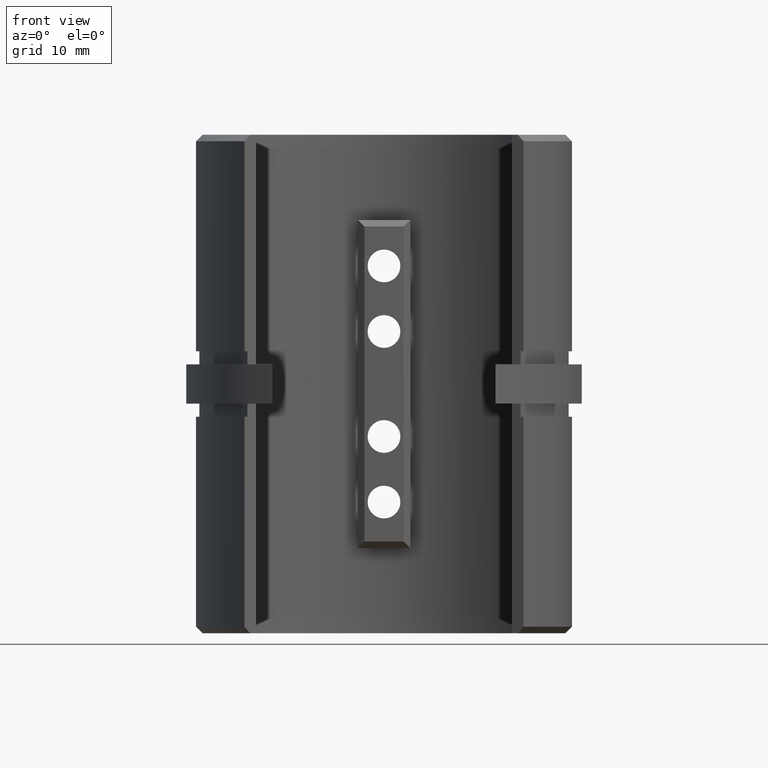
[diagram: clean part render]
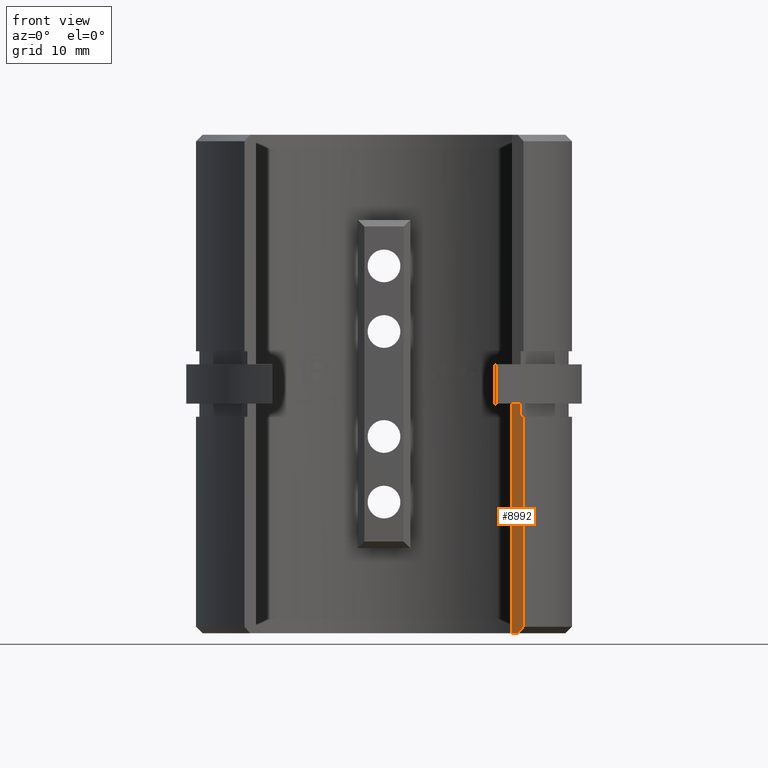
[diagram: same view with one face highlighted and labeled with its STEP entity id]
A machine part, front view. The second image highlights one B-rep face of the part: STEP entity #8992.
In plain terms, the highlighted planar face has unit normal (-0.5, -0.866, 0).
Its self-contained STEP definition (entity closure, byte-faithful):
#417 = CARTESIAN_POINT ( 'NONE',  ( 20.38784824288985931, -18.67774461825876031, -38.00000000000000711 ) ) ;
#859 = DIRECTION ( 'NONE',  ( -0.000000000000000000, -0.000000000000000000, 1.000000000000000000 ) ) ;
#893 = DIRECTION ( 'NONE',  ( -0.8660254037844369313, 0.5000000000000028866, 0.000000000000000000 ) ) ;
#975 = EDGE_CURVE ( 'NONE', #5210, #9560, #5641, .T. ) ;
#1088 = CARTESIAN_POINT ( 'NONE',  ( 21.27411917348713644, -19.18943337861405496, -37.00000000000003553 ) ) ;
#1636 = PLANE ( 'NONE',  #1905 ) ;
#1661 = EDGE_CURVE ( 'NONE', #14603, #7468, #6219, .T. ) ;
#1875 = VECTOR ( 'NONE', #15994, 1000.000000000000000 ) ;
#1905 = AXIS2_PLACEMENT_3D ( 'NONE', #4058, #6581, #10525 ) ;
#1936 = EDGE_CURVE ( 'NONE', #3867, #12855, #7415, .T. ) ;
#2485 = CARTESIAN_POINT ( 'NONE',  ( 21.27411917348713644, -19.18943337861404075, -4.999999999999997335 ) ) ;
#2551 = DIRECTION ( 'NONE',  ( 0.8660254037844369313, -0.5000000000000029976, 0.000000000000000000 ) ) ;
#2910 = CARTESIAN_POINT ( 'NONE',  ( 19.50000000000000355, -18.16514519622676005, -38.00000000000000711 ) ) ;
#3526 = VECTOR ( 'NONE', #893, 1000.000000000000227 ) ;
#3709 = VECTOR ( 'NONE', #2551, 1000.000000000000114 ) ;
#3710 = ORIENTED_EDGE ( 'NONE', *, *, #975, .F. ) ;
#3867 = VERTEX_POINT ( 'NONE', #6955 ) ;
#4058 = CARTESIAN_POINT ( 'NONE',  ( 19.50000000000000355, -18.16514519622676005, -38.00000000000000711 ) ) ;
#4312 = VERTEX_POINT ( 'NONE', #417 ) ;
#4519 = ORIENTED_EDGE ( 'NONE', *, *, #16139, .F. ) ;
#4545 = EDGE_CURVE ( 'NONE', #7468, #3867, #15427, .T. ) ;
#4995 = CARTESIAN_POINT ( 'NONE',  ( 21.27411917348713644, -19.18943337861405496, -37.00000000000003553 ) ) ;
#5105 = LINE ( 'NONE', #10146, #3709 ) ;
#5210 = VERTEX_POINT ( 'NONE', #11060 ) ;
#5223 = CARTESIAN_POINT ( 'NONE',  ( 20.83116986194003317, -18.93369647435496006, -3.000000000000000000 ) ) ;
#5641 = LINE ( 'NONE', #12293, #1875 ) ;
#6050 = VECTOR ( 'NONE', #7880, 1000.000000000000114 ) ;
#6167 = CARTESIAN_POINT ( 'NONE',  ( 20.38784824288985931, -18.67774461825876031, -38.00000000000000711 ) ) ;
#6219 = LINE ( 'NONE', #8558, #7432 ) ;
#6581 = DIRECTION ( 'NONE',  ( -0.5000000000000029976, -0.8660254037844370423, 0.000000000000000000 ) ) ;
#6858 = ORIENTED_EDGE ( 'NONE', *, *, #1936, .T. ) ;
#6955 = CARTESIAN_POINT ( 'NONE',  ( 20.83116986194002962, -18.93369647435496006, -5.000000000000000000 ) ) ;
#7415 = LINE ( 'NONE', #11980, #15503 ) ;
#7432 = VECTOR ( 'NONE', #13757, 1000.000000000000000 ) ;
#7468 = VERTEX_POINT ( 'NONE', #2485 ) ;
#7810 = EDGE_CURVE ( 'NONE', #5210, #4312, #9829, .T. ) ;
#7880 = DIRECTION ( 'NONE',  ( 0.8660254037844369313, -0.5000000000000029976, 0.000000000000000000 ) ) ;
#8558 = CARTESIAN_POINT ( 'NONE',  ( 21.27411917348713644, -19.18943337861405496, -38.00000000000000711 ) ) ;
#8674 = CARTESIAN_POINT ( 'NONE',  ( 20.97881462692674504, -19.01893921916447638, -37.33347401152528988 ) ) ;
#8992 = ADVANCED_FACE ( 'NONE', ( #13586 ), #1636, .T. ) ;
#9560 = VERTEX_POINT ( 'NONE', #16249 ) ;
#9702 = ORIENTED_EDGE ( 'NONE', *, *, #11576, .T. ) ;
#9793 = B_SPLINE_CURVE_WITH_KNOTS ( 'NONE', 3,
 ( #6167, #13660, #8674, #4995 ),
 .UNSPECIFIED., .F., .F.,
 ( 4, 4 ),
 ( 0.000000000000000000, 0.001430839456366665751 ),
 .UNSPECIFIED. ) ;
#9829 = LINE ( 'NONE', #2910, #6050 ) ;
#10146 = CARTESIAN_POINT ( 'NONE',  ( 19.50000000000000355, -18.16514519622676005, -3.000000000000000000 ) ) ;
#10241 = EDGE_LOOP ( 'NONE', ( #15599, #6858, #4519, #3710, #14496, #9702, #12471 ) ) ;
#10525 = DIRECTION ( 'NONE',  ( 0.8660254037844370423, -0.5000000000000029976, 0.000000000000000000 ) ) ;
#11060 = CARTESIAN_POINT ( 'NONE',  ( 19.50000000000000355, -18.16514519622676005, -38.00000000000000711 ) ) ;
#11576 = EDGE_CURVE ( 'NONE', #4312, #14603, #9793, .T. ) ;
#11980 = CARTESIAN_POINT ( 'NONE',  ( 20.83116986194003672, -18.93369647435496361, -3.000000000000000000 ) ) ;
#12293 = CARTESIAN_POINT ( 'NONE',  ( 19.50000000000000355, -18.16514519622676005, -38.00000000000000711 ) ) ;
#12471 = ORIENTED_EDGE ( 'NONE', *, *, #1661, .T. ) ;
#12855 = VERTEX_POINT ( 'NONE', #5223 ) ;
#13586 = FACE_OUTER_BOUND ( 'NONE', #10241, .T. ) ;
#13660 = CARTESIAN_POINT ( 'NONE',  ( 20.68339533896959637, -18.84837881373860569, -37.66681261230326072 ) ) ;
#13757 = DIRECTION ( 'NONE',  ( -0.000000000000000000, -0.000000000000000000, 1.000000000000000000 ) ) ;
#14496 = ORIENTED_EDGE ( 'NONE', *, *, #7810, .T. ) ;
#14603 = VERTEX_POINT ( 'NONE', #1088 ) ;
#14970 = CARTESIAN_POINT ( 'NONE',  ( 19.50000000000000355, -18.16514519622676005, -4.999999999999997335 ) ) ;
#15427 = LINE ( 'NONE', #14970, #3526 ) ;
#15503 = VECTOR ( 'NONE', #859, 1000.000000000000000 ) ;
#15599 = ORIENTED_EDGE ( 'NONE', *, *, #4545, .T. ) ;
#15994 = DIRECTION ( 'NONE',  ( -0.000000000000000000, -0.000000000000000000, 1.000000000000000000 ) ) ;
#16139 = EDGE_CURVE ( 'NONE', #9560, #12855, #5105, .T. ) ;
#16249 = CARTESIAN_POINT ( 'NONE',  ( 19.50000000000000355, -18.16514519622676005, -3.000000000000000000 ) ) ;